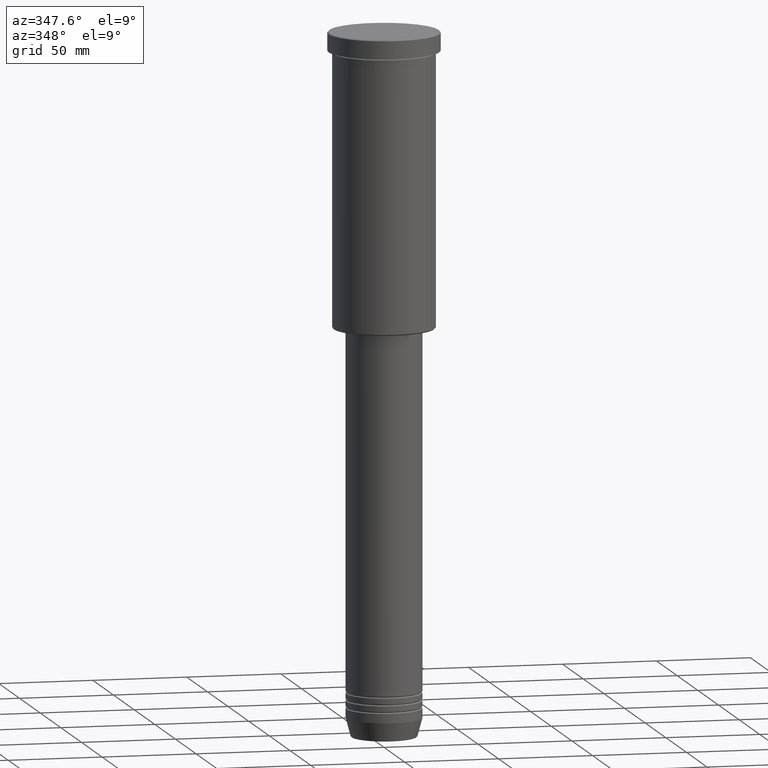
[diagram: clean part render]
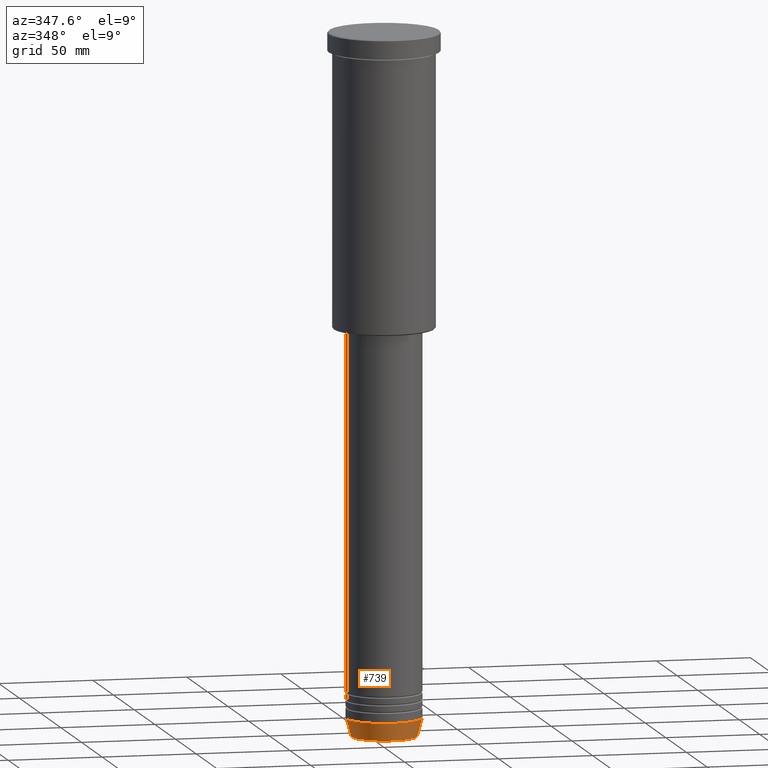
[diagram: same view with one face highlighted and labeled with its STEP entity id]
A machine part, auxiliary view. The second image highlights one B-rep face of the part: STEP entity #739.
In plain terms, the highlighted conical surface has half-angle 15 deg.
Its self-contained STEP definition (entity closure, byte-faithful):
#16 = CONICAL_SURFACE ( 'NONE', #1164, 20.00000000000000000, 0.2617993877991499074 ) ;
#33 = DIRECTION ( 'NONE',  ( -0.000000000000000000, -0.000000000000000000, 1.000000000000000000 ) ) ;
#71 = FACE_OUTER_BOUND ( 'NONE', #877, .T. ) ;
#72 = ORIENTED_EDGE ( 'NONE', *, *, #860, .T. ) ;
#106 = CARTESIAN_POINT ( 'NONE',  ( 0.000000000000000000, 0.000000000000000000, -361.0000000000000000 ) ) ;
#108 = LINE ( 'NONE', #543, #190 ) ;
#157 = EDGE_CURVE ( 'NONE', #1084, #1138, #207, .T. ) ;
#165 = DIRECTION ( 'NONE',  ( 1.000000000000000000, 0.000000000000000000, 0.000000000000000000 ) ) ;
#187 = CARTESIAN_POINT ( 'NONE',  ( -20.00000000000000000, 2.449293598294706513E-15, -361.0000000000000000 ) ) ;
#190 = VECTOR ( 'NONE', #742, 1000.000000000000114 ) ;
#207 = CIRCLE ( 'NONE', #630, 20.00000000000000000 ) ;
#224 = DIRECTION ( 'NONE',  ( 1.000000000000000000, 0.000000000000000000, 0.000000000000000000 ) ) ;
#242 = DIRECTION ( 'NONE',  ( -0.000000000000000000, -0.000000000000000000, 1.000000000000000000 ) ) ;
#252 = DIRECTION ( 'NONE',  ( 0.2588190451025211836, 0.000000000000000000, 0.9659258262890680902 ) ) ;
#255 = ORIENTED_EDGE ( 'NONE', *, *, #464, .F. ) ;
#257 = DIRECTION ( 'NONE',  ( -0.000000000000000000, -0.000000000000000000, 1.000000000000000000 ) ) ;
#285 = CARTESIAN_POINT ( 'NONE',  ( 20.00000000000000000, 0.000000000000000000, -361.0000000000000000 ) ) ;
#298 = VERTEX_POINT ( 'NONE', #972 ) ;
#313 = VERTEX_POINT ( 'NONE', #588 ) ;
#391 = ORIENTED_EDGE ( 'NONE', *, *, #157, .F. ) ;
#464 = EDGE_CURVE ( 'NONE', #298, #1084, #108, .T. ) ;
#491 = DIRECTION ( 'NONE',  ( 1.000000000000000000, 0.000000000000000000, 0.000000000000000000 ) ) ;
#543 = CARTESIAN_POINT ( 'NONE',  ( -20.00000000000000000, 2.449293598294706513E-15, -361.0000000000000000 ) ) ;
#566 = ORIENTED_EDGE ( 'NONE', *, *, #663, .T. ) ;
#588 = CARTESIAN_POINT ( 'NONE',  ( 17.41980749484382684, 0.000000000000000000, -370.6294095225512706 ) ) ;
#630 = AXIS2_PLACEMENT_3D ( 'NONE', #106, #33, #491 ) ;
#655 = CARTESIAN_POINT ( 'NONE',  ( 0.000000000000000000, 0.000000000000000000, -370.6294095225512706 ) ) ;
#663 = EDGE_CURVE ( 'NONE', #313, #1138, #1171, .T. ) ;
#739 = ADVANCED_FACE ( 'NONE', ( #71 ), #16, .T. ) ;
#742 = DIRECTION ( 'NONE',  ( -0.2588190451025211836, 3.169619151431770488E-17, 0.9659258262890680902 ) ) ;
#771 = CIRCLE ( 'NONE', #1078, 17.41980749484382684 ) ;
#784 = CARTESIAN_POINT ( 'NONE',  ( 0.000000000000000000, 0.000000000000000000, -361.0000000000000000 ) ) ;
#822 = VECTOR ( 'NONE', #252, 1000.000000000000114 ) ;
#860 = EDGE_CURVE ( 'NONE', #298, #313, #771, .T. ) ;
#877 = EDGE_LOOP ( 'NONE', ( #255, #72, #566, #391 ) ) ;
#972 = CARTESIAN_POINT ( 'NONE',  ( -17.41980749484382684, 2.291302373663531915E-15, -370.6294095225512706 ) ) ;
#1065 = CARTESIAN_POINT ( 'NONE',  ( 20.00000000000000000, 0.000000000000000000, -361.0000000000000000 ) ) ;
#1078 = AXIS2_PLACEMENT_3D ( 'NONE', #655, #242, #224 ) ;
#1084 = VERTEX_POINT ( 'NONE', #187 ) ;
#1138 = VERTEX_POINT ( 'NONE', #285 ) ;
#1164 = AXIS2_PLACEMENT_3D ( 'NONE', #784, #257, #165 ) ;
#1171 = LINE ( 'NONE', #1065, #822 ) ;